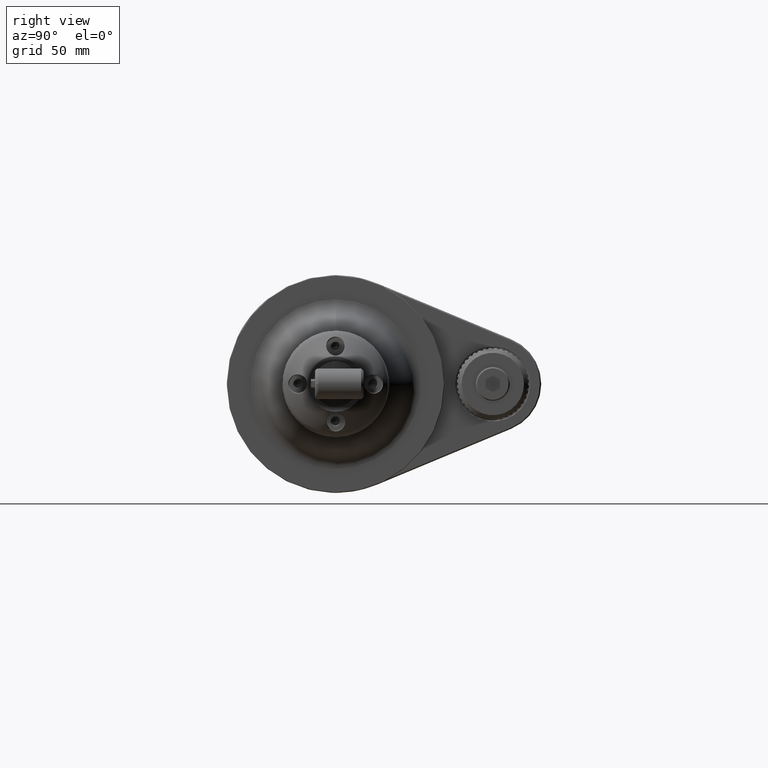
[diagram: clean part render]
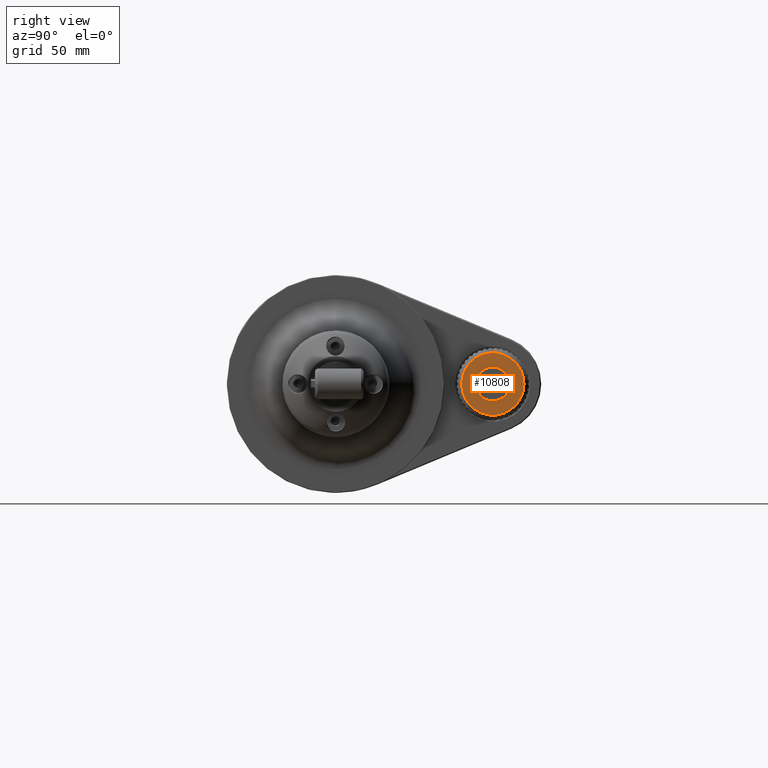
[diagram: same view with one face highlighted and labeled with its STEP entity id]
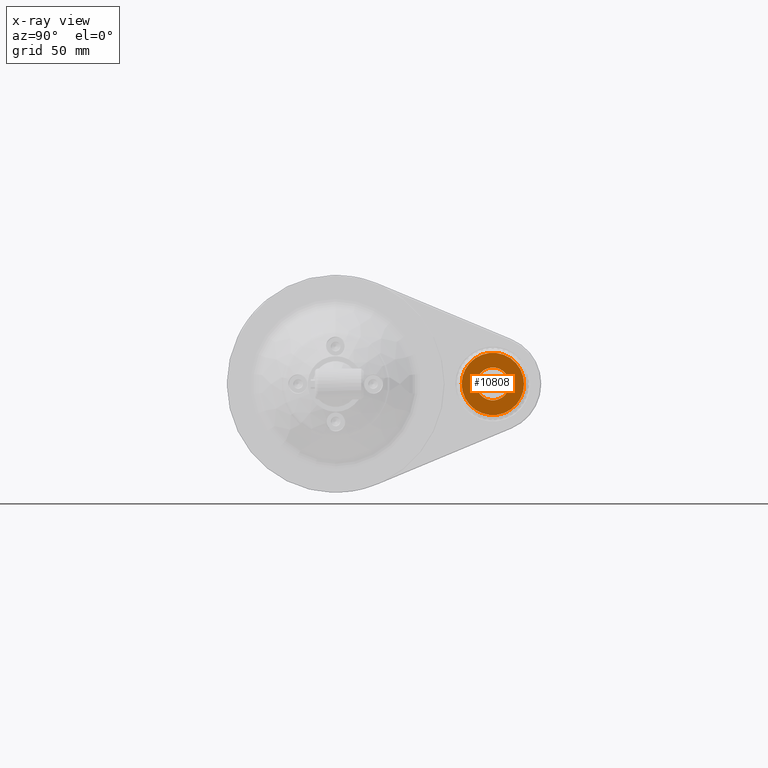
[diagram: x-ray of the same camera — body ghosted, the highlighted face saturated]
A machine part, right view. The second image highlights one B-rep face of the part: STEP entity #10808.
The next image is the same camera in x-ray: the body ghosted, the highlighted face saturated — about 0% of this face is hidden behind the body in this view.
In plain terms, the highlighted planar face has unit normal (1, 0, -0).
Its self-contained STEP definition (entity closure, byte-faithful):
#259=FACE_BOUND('',#2194,.T.);
#500=CIRCLE('',#11305,12.89999259851);
#799=CIRCLE('',#11834,6.799999002111);
#1523=FACE_OUTER_BOUND('',#2193,.T.);
#2193=EDGE_LOOP('',(#8450));
#2194=EDGE_LOOP('',(#8451));
#4357=VERTEX_POINT('',#15988);
#4938=VERTEX_POINT('',#18495);
#5436=EDGE_CURVE('',#4357,#4357,#500,.T.);
#6235=EDGE_CURVE('',#4938,#4938,#799,.T.);
#8450=ORIENTED_EDGE('',*,*,#5436,.F.);
#8451=ORIENTED_EDGE('',*,*,#6235,.F.);
#10406=PLANE('',#11833);
#10808=ADVANCED_FACE('',(#1523,#259),#10406,.T.);
#11305=AXIS2_PLACEMENT_3D('',#15990,#12597,#12598);
#11833=AXIS2_PLACEMENT_3D('',#18494,#14065,#14066);
#11834=AXIS2_PLACEMENT_3D('',#18496,#14067,#14068);
#12597=DIRECTION('center_axis',(0.,1.,0.));
#12598=DIRECTION('ref_axis',(0.,0.,-1.));
#14065=DIRECTION('center_axis',(0.,-1.,0.));
#14066=DIRECTION('ref_axis',(0.,0.,1.));
#14067=DIRECTION('center_axis',(0.,-1.,0.));
#14068=DIRECTION('ref_axis',(1.,0.,-4.993862266289E-11));
#15988=CARTESIAN_POINT('',(-2.345984006709E-9,-11.5,-52.10000740149));
#15990=CARTESIAN_POINT('Origin',(0.,-11.5,-65.));
#18494=CARTESIAN_POINT('Origin',(0.,-11.5,-65.));
#18495=CARTESIAN_POINT('',(1.191141630928E-14,-11.5,-58.20000099789));
#18496=CARTESIAN_POINT('Origin',(1.215574591791E-14,-11.5,-65.));